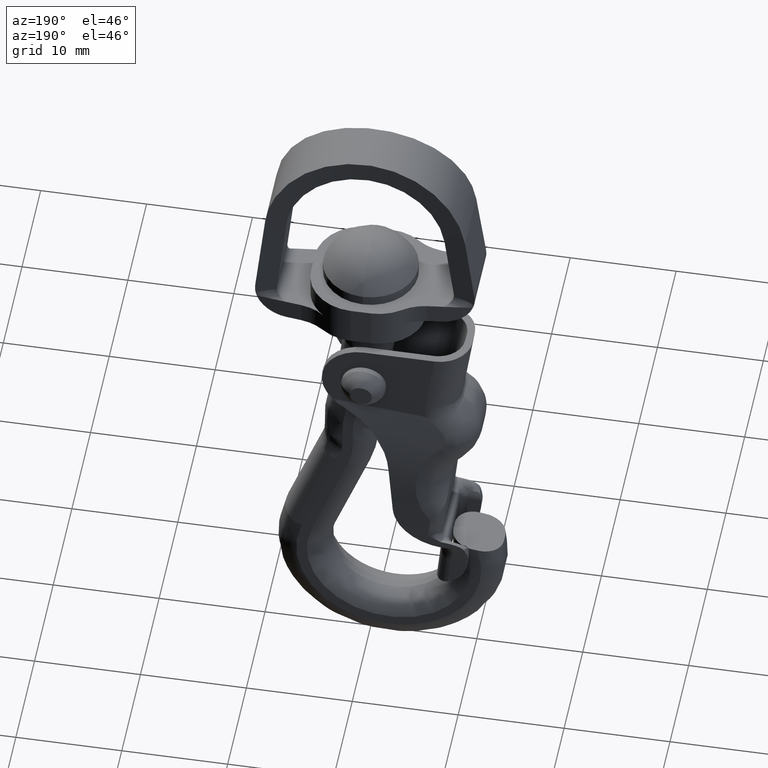
[diagram: clean part render]
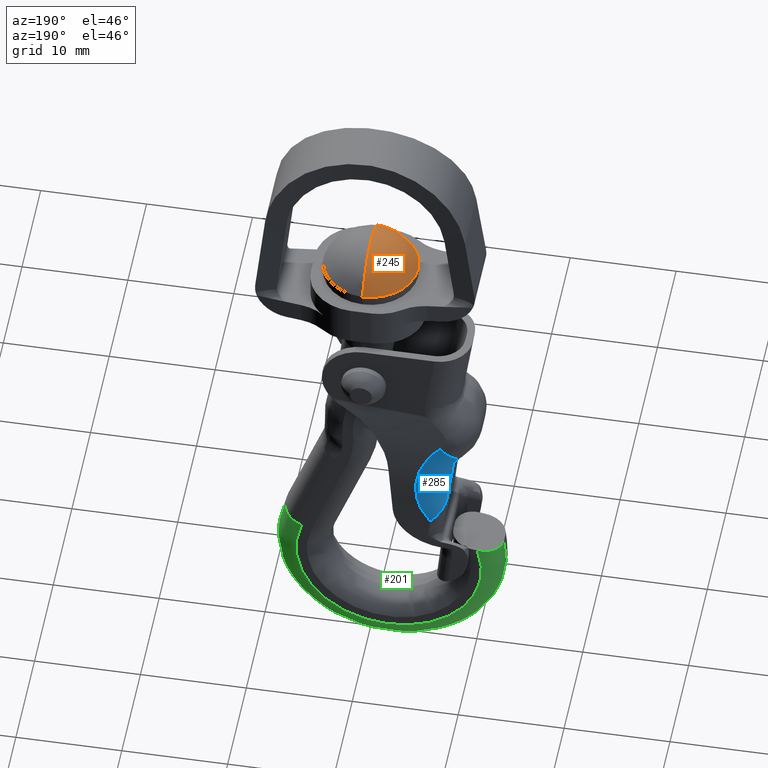
[diagram: same view with three faces highlighted in distinct colors, each labeled with its STEP entity id]
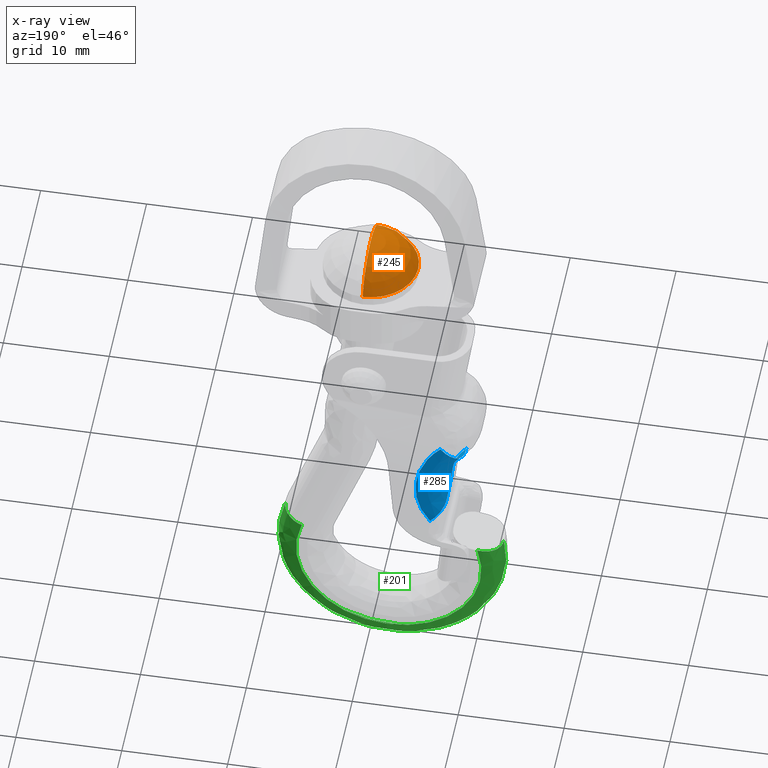
[diagram: x-ray of the same camera — body ghosted, the three highlighted faces saturated]
A machine part, auxiliary view with three faces highlighted in distinct colors.
The next image is the same camera in x-ray (body ghosted, the three faces saturated) — at least one of them is partly hidden behind the body in this view.
Their STEP definitions:

[orange] entity #245 — the highlighted spherical surface has radius 4.8333 mm.
#245=ADVANCED_FACE('',(#1315),#1314,.T.);
#1314=SPHERICAL_SURFACE('',#3267,4.83333333333E+00);
#1315=FACE_OUTER_BOUND('',#3268,.T.);
#3264=CARTESIAN_POINT('',(0.00000000000E+00,-4.54747350886E-13,-8.33333333333E-01));
#3265=DIRECTION('',(-0.00000000000E+00,-0.00000000000E+00,-1.00000000000E+00));
#3266=DIRECTION('',(-1.22460635382E-16,-1.00000000000E+00,0.00000000000E+00));
#3267=AXIS2_PLACEMENT_3D('',#3264,#3265,#3266);
#3268=EDGE_LOOP('',(#6055,#6056,#6057,#6058));
#6055=ORIENTED_EDGE('',*,*,#6882,.F.);
#6056=ORIENTED_EDGE('',*,*,#6881,.F.);
#6057=ORIENTED_EDGE('',*,*,#6885,.F.);
#6058=ORIENTED_EDGE('',*,*,#6886,.T.);
#6881=EDGE_CURVE('',#8854,#8861,#8862,.T.);
#6882=EDGE_CURVE('',#8861,#8868,#8869,.T.);
#6885=EDGE_CURVE('',#8887,#8854,#8888,.T.);
#6886=EDGE_CURVE('',#8887,#8868,#8894,.T.);
#8854=VERTEX_POINT('',#12177);
#8861=VERTEX_POINT('',#12181);
#8862=CIRCLE('',#12185,4.47213595500E+00);
#8868=VERTEX_POINT('',#12186);
#8869=CIRCLE('',#12190,4.47213595500E+00);
#8887=VERTEX_POINT('',#12198);
#8888=(BOUNDED_CURVE() B_SPLINE_CURVE(2,(#12199,#12200,#12201),.UNSPECIFIED.,.F.,.F.) B_SPLINE_CURVE_WITH_KNOTS((3,3),(0.00000000000E+00,1.00000000000E+00),.UNSPECIFIED.) CURVE() GEOMETRIC_REPRESENTATION_ITEM() RATIONAL_B_SPLINE_CURVE((1.00000000000E+00,8.30454798537E-01,1.00000000000E+00)) REPRESENTATION_ITEM('') );
#8894=(BOUNDED_CURVE() B_SPLINE_CURVE(2,(#12202,#12203,#12204),.UNSPECIFIED.,.F.,.F.) B_SPLINE_CURVE_WITH_KNOTS((3,3),(0.00000000000E+00,1.00000000000E+00),.UNSPECIFIED.) CURVE() GEOMETRIC_REPRESENTATION_ITEM() RATIONAL_B_SPLINE_CURVE((7.50000000000E-01,6.22841098903E-01,7.50000000000E-01)) REPRESENTATION_ITEM('') );
#12177=CARTESIAN_POINT('',(-3.66836692410E-11,-4.47213595500E+00,9.99999999998E-01));
#12181=CARTESIAN_POINT('',(-4.47213595500E+00,4.54747350886E-13,9.99999999998E-01));
#12182=CARTESIAN_POINT('',(0.00000000000E+00,4.54747350886E-13,9.99999999998E-01));
#12183=DIRECTION('',(-0.00000000000E+00,0.00000000000E+00,-1.00000000000E+00));
#12184=DIRECTION('',(-1.00000000000E+00,-1.22460635382E-16,0.00000000000E+00));
#12185=AXIS2_PLACEMENT_3D('',#12182,#12183,#12184);
#12186=CARTESIAN_POINT('',(4.64141588487E-04,4.47213593091E+00,9.99999999998E-01));
#12187=CARTESIAN_POINT('',(0.00000000000E+00,4.54747350886E-13,9.99999999998E-01));
#12188=DIRECTION('',(-0.00000000000E+00,0.00000000000E+00,-1.00000000000E+00));
#12189=DIRECTION('',(-1.00000000000E+00,-1.22460635382E-16,0.00000000000E+00));
#12190=AXIS2_PLACEMENT_3D('',#12187,#12188,#12189);
#12198=CARTESIAN_POINT('',(-3.62429977427E-32,-4.55043307196E-13,4.00000000000E+00));
#12199=CARTESIAN_POINT('',(-3.62429977427E-32,-4.55043307196E-13,4.00000000000E+00));
#12200=CARTESIAN_POINT('',(-3.97053942660E-16,-3.24229856738E+00,4.00000000000E+00));
#12201=CARTESIAN_POINT('',(-5.47660610565E-16,-4.47213595500E+00,9.99999999998E-01));
#12202=CARTESIAN_POINT('',(3.28692043842E-32,-4.54451394577E-13,4.00000000000E+00));
#12203=CARTESIAN_POINT('',(3.56502814789E-16,3.24229856738E+00,4.00000000000E+00));
#12204=CARTESIAN_POINT('',(8.88178419700E-16,4.47213595500E+00,9.99999999998E-01));

[blue] entity #285 — the highlighted face is a freeform B-spline surface patch.
#285=ADVANCED_FACE('',(#1716),#1715,.T.);
#1715=( BOUNDED_SURFACE() B_SPLINE_SURFACE( 3,2,((#4246,#4247,#4248),(#4249,#4250,#4251),(#4252,#4253,#4254),(#4255,#4256,#4257),(#4258,#4259,#4260),(#4261,#4262,#4263),(#4264,#4265,#4266),(#4267,#4268,#4269),(#4270,#4271,#4272),(#4273,#4274,#4275),(#4276,#4277,#4278),(#4279,#4280,#4281),(#4282,#4283,#4284),(#4285,#4286,#4287),(#4288,#4289,#4290),(#4291,#4292,#4293),(#4294,#4295,#4296),(#4297,#4298,#4299),(#4300,#4301,#4302),(#4303,#4304,#4305),(#4306,#4307,#4308),(#4309,#4310,#4311)), .UNSPECIFIED.,.F.,.F.,.F.) B_SPLINE_SURFACE_WITH_KNOTS((4,2,2,2,2,2,2,2,2,2,4),(3,3),(0.00000000000E+00,1.24255929217E-03,1.86383893826E-03,2.48511858435E-03,3.72767787652E-03,4.97023716869E-03,6.21279646086E-03,6.83407610695E-03,7.45535575304E-03,8.69791504521E-03,9.94047433738E-03),(0.00000000000E+00,1.00000000000E+00), .UNSPECIFIED. ) GEOMETRIC_REPRESENTATION_ITEM() RATIONAL_B_SPLINE_SURFACE(((1.00000000000E+00,6.78548252458E-01,1.00000000000E+00),(1.00000000000E+00,6.81875963517E-01,1.00000000000E+00),(1.00000000000E+00,6.85152758834E-01,1.00000000000E+00),(1.00000000000E+00,6.89794572548E-01,1.00000000000E+00),(1.00000000000E+00,6.91296485688E-01,1.00000000000E+00),(1.00000000000E+00,6.94178382040E-01,1.00000000000E+00),(1.00000000000E+00,6.95563713272E-01,1.00000000000E+00),(1.00000000000E+00,6.99414687661E-01,1.00000000000E+00),(1.00000000000E+00,7.01599034610E-01,1.00000000000E+00),(1.00000000000E+00,7.05081694357E-01,1.00000000000E+00),(1.00000000000E+00,7.06380871305E-01,1.00000000000E+00),(1.00000000000E+00,7.07928101501E-01,1.00000000000E+00),(1.00000000000E+00,7.08197997018E-01,1.00000000000E+00),(1.00000000000E+00,7.07883388422E-01,1.00000000000E+00),(1.00000000000E+00,7.07656076242E-01,1.00000000000E+00),(1.00000000000E+00,7.06982463217E-01,1.00000000000E+00),(1.00000000000E+00,7.06537150956E-01,1.00000000000E+00),(1.00000000000E+00,7.04914792734E-01,1.00000000000E+00),(1.00000000000E+00,7.03451010698E-01,1.00000000000E+00),(1.00000000000E+00,6.99959698406E-01,1.00000000000E+00),(1.00000000000E+00,6.97980068003E-01,1.00000000000E+00),(1.00000000000E+00,6.95931160871E-01,1.00000000000E+00))) REPRESENTATION_ITEM('') SURFACE() );
#1716=FACE_OUTER_BOUND('',#4312,.T.);
#4246=CARTESIAN_POINT('',(-7.94207448427E+00,4.14034814309E+00,-6.29198109592E+00));
#4247=CARTESIAN_POINT('',(-1.02971698381E+01,4.39649134031E+00,-8.51345765789E+00));
#4248=CARTESIAN_POINT('',(-1.01107769039E+01,1.16009369189E+00,-8.70846923124E+00));
#4249=CARTESIAN_POINT('',(-7.65280277639E+00,4.17709491830E+00,-6.61067821828E+00));
#4250=CARTESIAN_POINT('',(-1.01306226303E+01,4.40163553099E+00,-8.66268452741E+00));
#4251=CARTESIAN_POINT('',(-9.95501733928E+00,1.19498940489E+00,-8.87143097606E+00));
#4252=CARTESIAN_POINT('',(-7.39720144380E+00,4.21400436293E+00,-6.95334138415E+00));
#4253=CARTESIAN_POINT('',(-9.97641409467E+00,4.40808650219E+00,-8.82993665462E+00));
#4254=CARTESIAN_POINT('',(-9.81738372836E+00,1.23004054662E+00,-9.04665206904E+00));
#4255=CARTESIAN_POINT('',(-7.06219819109E+00,4.26763420366E+00,-7.50188838820E+00));
#4256=CARTESIAN_POINT('',(-9.76822075110E+00,4.41938007227E+00,-9.10791570262E+00));
#4257=CARTESIAN_POINT('',(-9.63699736143E+00,1.28096956040E+00,-9.32714847283E+00));
#4258=CARTESIAN_POINT('',(-6.95865246773E+00,4.28522544893E+00,-7.69054050859E+00));
#4259=CARTESIAN_POINT('',(-9.70285576912E+00,4.42339606106E+00,-9.20476000507E+00));
#4260=CARTESIAN_POINT('',(-9.58124197210E+00,1.29767490172E+00,-9.42361466624E+00));
#4261=CARTESIAN_POINT('',(-6.76813785171E+00,4.31952784087E+00,-8.07971823112E+00));
#4262=CARTESIAN_POINT('',(-9.58083957100E+00,4.43186413313E+00,-9.40740267222E+00));
#4263=CARTESIAN_POINT('',(-9.47865717857E+00,1.33024980715E+00,-9.62261849042E+00));
#4264=CARTESIAN_POINT('',(-6.68087802980E+00,4.33630741007E+00,-8.28121322922E+00));
#4265=CARTESIAN_POINT('',(-9.52392934362E+00,4.43633791836E+00,-9.51373243547E+00));
#4266=CARTESIAN_POINT('',(-9.43167112062E+00,1.34618434876E+00,-9.72565181654E+00));
#4267=CARTESIAN_POINT('',(-6.44949429754E+00,4.38392096338E+00,-8.89187676418E+00));
#4268=CARTESIAN_POINT('',(-9.37107606484E+00,4.44995969512E+00,-9.83912264603E+00));
#4269=CARTESIAN_POINT('',(-9.30707988061E+00,1.39140005867E+00,-1.00379111568E+01));
#4270=CARTESIAN_POINT('',(-6.33378702478E+00,4.41229863390E+00,-9.30981657464E+00));
#4271=CARTESIAN_POINT('',(-9.29092408369E+00,4.45941688038E+00,-1.00673415765E+01));
#4272=CARTESIAN_POINT('',(-9.24477596441E+00,1.41834861528E+00,-1.02516223118E+01));
#4273=CARTESIAN_POINT('',(-6.17844071688E+00,4.46097824626E+00,-1.01671605378E+01));
#4274=CARTESIAN_POINT('',(-9.17854881996E+00,4.47814258097E+00,-1.05414213306E+01));
#4275=CARTESIAN_POINT('',(-9.16112795208E+00,1.46457669687E+00,-1.06900202918E+01));
#4276=CARTESIAN_POINT('',(-6.13936469506E+00,4.48136126369E+00,-1.06107633220E+01));
#4277=CARTESIAN_POINT('',(-9.14625136811E+00,4.48750647484E+00,-1.07901877078E+01));
#4278=CARTESIAN_POINT('',(-9.14008701724E+00,1.48393321507E+00,-1.09168540632E+01));
#4279=CARTESIAN_POINT('',(-6.14259301144E+00,4.51172616154E+00,-1.14851416163E+01));
#4280=CARTESIAN_POINT('',(-9.13486395229E+00,4.50475306814E+00,-1.12818831829E+01));
#4281=CARTESIAN_POINT('',(-9.14182534185E+00,1.51276892104E+00,-1.13639624519E+01));
#4282=CARTESIAN_POINT('',(-6.18360957539E+00,4.52197364104E+00,-1.19190475206E+01));
#4283=CARTESIAN_POINT('',(-9.15476868080E+00,4.51273859108E+00,-1.15271546898E+01));
#4284=CARTESIAN_POINT('',(-9.16391118408E+00,1.52250033207E+00,-1.15858377786E+01));
#4285=CARTESIAN_POINT('',(-6.30494056414E+00,4.53027726739E+00,-1.25649120277E+01));
#4286=CARTESIAN_POINT('',(-9.22283905134E+00,4.52369891787E+00,-1.18899593963E+01));
#4287=CARTESIAN_POINT('',(-9.22924325449E+00,1.53038578357E+00,-1.19160969366E+01));
#4288=CARTESIAN_POINT('',(-6.35578724044E+00,4.53186224282E+00,-1.27804324798E+01));
#4289=CARTESIAN_POINT('',(-9.25216175460E+00,4.52720629865E+00,-1.20107880610E+01));
#4290=CARTESIAN_POINT('',(-9.25662223402E+00,1.53189093868E+00,-1.20263020992E+01));
#4291=CARTESIAN_POINT('',(-6.47595487082E+00,4.53274193844E+00,-1.32015683907E+01));
#4292=CARTESIAN_POINT('',(-9.32236982914E+00,4.53379660325E+00,-1.22457850963E+01));
#4293=CARTESIAN_POINT('',(-9.32132788148E+00,1.53272633260E+00,-1.22416475620E+01));
#4294=CARTESIAN_POINT('',(-6.54528049553E+00,4.53205709039E+00,-1.34077973555E+01));
#4295=CARTESIAN_POINT('',(-9.36328143058E+00,4.53689346284E+00,-1.23603691803E+01));
#4296=CARTESIAN_POINT('',(-9.35865706381E+00,1.53207597363E+00,-1.23471015752E+01));
#4297=CARTESIAN_POINT('',(-6.78035494199E+00,4.52702822504E+00,-1.40137655697E+01));
#4298=CARTESIAN_POINT('',(-9.50242924361E+00,4.54570130533E+00,-1.26951454991E+01));
#4299=CARTESIAN_POINT('',(-9.48523561202E+00,1.52730036486E+00,-1.26569599896E+01));
#4300=CARTESIAN_POINT('',(-6.97294733883E+00,4.51970901905E+00,-1.44009050440E+01));
#4301=CARTESIAN_POINT('',(-9.61702131398E+00,4.55092314985E+00,-1.29061387089E+01));
#4302=CARTESIAN_POINT('',(-9.58893921061E+00,1.52034975747E+00,-1.28549215670E+01));
#4303=CARTESIAN_POINT('',(-7.43262472796E+00,4.49915886318E+00,-1.51402443239E+01));
#4304=CARTESIAN_POINT('',(-9.88662475561E+00,4.56065952037E+00,-1.33012365311E+01));
#4305=CARTESIAN_POINT('',(-9.83645780403E+00,1.50083451848E+00,-1.32329785211E+01));
#4306=CARTESIAN_POINT('',(-7.69374165994E+00,4.48621270199E+00,-1.54823030639E+01));
#4307=CARTESIAN_POINT('',(-1.00384164090E+01,4.56505720960E+00,-1.34800322065E+01));
#4308=CARTESIAN_POINT('',(-9.97705965869E+00,1.48854029612E+00,-1.34078887617E+01));
#4309=CARTESIAN_POINT('',(-7.98206637108E+00,4.47216448844E+00,-1.57943716732E+01));
#4310=CARTESIAN_POINT('',(-1.02019249601E+01,4.56919093903E+00,-1.36390150939E+01));
#4311=CARTESIAN_POINT('',(-1.01323109968E+01,1.47519959424E+00,-1.35674628362E+01));
#4312=EDGE_LOOP('',(#6278,#6279,#6280,#6281,#6282));
#6278=ORIENTED_EDGE('',*,*,#7053,.F.);
#6279=ORIENTED_EDGE('',*,*,#7054,.T.);
#6280=ORIENTED_EDGE('',*,*,#7055,.F.);
#6281=ORIENTED_EDGE('',*,*,#7056,.F.);
#6282=ORIENTED_EDGE('',*,*,#7057,.T.);
#7053=EDGE_CURVE('',#10023,#10024,#10025,.T.);
#7054=EDGE_CURVE('',#10023,#10031,#10032,.T.);
#7055=EDGE_CURVE('',#10038,#10031,#10039,.T.);
#7056=EDGE_CURVE('',#10045,#10038,#10046,.T.);
#7057=EDGE_CURVE('',#10045,#10024,#10052,.T.);
#10023=VERTEX_POINT('',#13303);
#10024=VERTEX_POINT('',#13304);
#10025=(BOUNDED_CURVE() B_SPLINE_CURVE(3,(#13305,#13306,#13307,#13308,#13309,#13310,#13311,#13312,#13313,#13314,#13315,#13316,#13317,#13318,#13319,#13320,#13321,#13322,#13323,#13324,#13325,#13326),.UNSPECIFIED.,.F.,.F.) B_SPLINE_CURVE_WITH_KNOTS((4,2,2,2,2,2,2,2,2,2,4),(1.60140071030E-03,2.90848814800E-03,4.21557558569E-03,4.86911930454E-03,5.52266302339E-03,6.82975046108E-03,8.13683789878E-03,9.44392533647E-03,1.00974690553E-02,1.07510127742E-02,1.20581002119E-02),.UNSPECIFIED.) CURVE() GEOMETRIC_REPRESENTATION_ITEM() RATIONAL_B_SPLINE_CURVE((1.00000000000E+00,1.00000000000E+00,1.00000000000E+00,1.00000000000E+00,1.00000000000E+00,1.00000000000E+00,1.00000000000E+00,1.00000000000E+00,1.00000000000E+00,1.00000000000E+00,1.00000000000E+00,1.00000000000E+00,1.00000000000E+00,1.00000000000E+00,1.00000000000E+00,1.00000000000E+00,1.00000000000E+00,1.00000000000E+00,1.00000000000E+00,1.00000000000E+00,1.00000000000E+00,1.00000000000E+00)) REPRESENTATION_ITEM('') );
#10031=VERTEX_POINT('',#13327);
#10032=(BOUNDED_CURVE() B_SPLINE_CURVE(3,(#13328,#13329,#13330,#13331,#13332,#13333,#13334,#13335,#13336,#13337,#13338,#13339),.UNSPECIFIED.,.F.,.F.) B_SPLINE_CURVE_WITH_KNOTS((4,2,2,2,2,4),(-3.06650384943E-03,-2.68319086825E-03,-2.29987788707E-03,-1.53325192471E-03,-7.66625962357E-04,-4.09133713543E-18),.UNSPECIFIED.) CURVE() GEOMETRIC_REPRESENTATION_ITEM() RATIONAL_B_SPLINE_CURVE((1.00000000000E+00,1.00000000000E+00,1.00000000000E+00,1.00000000000E+00,1.00000000000E+00,1.00000000000E+00,1.00000000000E+00,1.00000000000E+00,1.00000000000E+00,1.00000000000E+00,1.00000000000E+00,1.00000000000E+00)) REPRESENTATION_ITEM('') );
#10038=VERTEX_POINT('',#13340);
#10039=(BOUNDED_CURVE() B_SPLINE_CURVE(3,(#13341,#13342,#13343,#13344,#13345,#13346,#13347,#13348),.UNSPECIFIED.,.F.,.F.) B_SPLINE_CURVE_WITH_KNOTS((4,2,2,4),(-6.54284632986E-03,-5.83760321801E-03,-5.13236010616E-03,-3.72187388246E-03),.UNSPECIFIED.) CURVE() GEOMETRIC_REPRESENTATION_ITEM() RATIONAL_B_SPLINE_CURVE((1.00000000000E+00,1.00000000000E+00,1.00000000000E+00,1.00000000000E+00,1.00000000000E+00,1.00000000000E+00,1.00000000000E+00,1.00000000000E+00)) REPRESENTATION_ITEM('') );
#10045=VERTEX_POINT('',#13349);
#10046=(BOUNDED_CURVE() B_SPLINE_CURVE(3,(#13350,#13351,#13352,#13353,#13354,#13355,#13356,#13357,#13358,#13359),.UNSPECIFIED.,.F.,.F.) B_SPLINE_CURVE_WITH_KNOTS((4,2,2,2,4),(2.16840434497E-19,6.69256974509E-04,1.33851394902E-03,2.00777092353E-03,2.67702789803E-03),.UNSPECIFIED.) CURVE() GEOMETRIC_REPRESENTATION_ITEM() RATIONAL_B_SPLINE_CURVE((1.00000000000E+00,1.00000000000E+00,1.00000000000E+00,1.00000000000E+00,1.00000000000E+00,1.00000000000E+00,1.00000000000E+00,1.00000000000E+00,1.00000000000E+00,1.00000000000E+00)) REPRESENTATION_ITEM('') );
#10052=CIRCLE('',#13363,3.00000000000E+00);
#13303=CARTESIAN_POINT('',(-7.94092972689E+00,4.47417018611E+00,-1.57494393137E+01));
#13304=CARTESIAN_POINT('',(-7.94207448427E+00,4.14034814309E+00,-6.29198109592E+00));
#13305=CARTESIAN_POINT('',(-7.94092972689E+00,4.47417018611E+00,-1.57494393137E+01));
#13306=CARTESIAN_POINT('',(-7.65223580818E+00,4.48825470057E+00,-1.54312163859E+01));
#13307=CARTESIAN_POINT('',(-7.39299310541E+00,4.50105603266E+00,-1.50839860745E+01));
#13308=CARTESIAN_POINT('',(-6.94130769892E+00,4.52097697122E+00,-1.43412601611E+01));
#13309=CARTESIAN_POINT('',(-6.75332607538E+00,4.52789181815E+00,-1.39538789476E+01));
#13310=CARTESIAN_POINT('',(-6.52520664326E+00,4.53231032338E+00,-1.33500053781E+01));
#13311=CARTESIAN_POINT('',(-6.45820767734E+00,4.53279142421E+00,-1.31448863141E+01));
#13312=CARTESIAN_POINT('',(-6.34255782470E+00,4.53153148672E+00,-1.27268773717E+01));
#13313=CARTESIAN_POINT('',(-6.29401792118E+00,4.52977449812E+00,-1.25138906503E+01));
#13314=CARTESIAN_POINT('',(-6.17868957949E+00,4.52105310067E+00,-1.18758684743E+01));
#13315=CARTESIAN_POINT('',(-6.14064044251E+00,4.51064258070E+00,-1.14476074390E+01));
#13316=CARTESIAN_POINT('',(-6.14122229330E+00,4.48024207718E+00,-1.05853470494E+01));
#13317=CARTESIAN_POINT('',(-6.18097724537E+00,4.46002892986E+00,-1.01488603678E+01));
#13318=CARTESIAN_POINT('',(-6.33590136714E+00,4.41179527557E+00,-9.30258070934E+00));
#13319=CARTESIAN_POINT('',(-6.45062304533E+00,4.38369079161E+00,-8.88894911414E+00));
#13320=CARTESIAN_POINT('',(-6.68015569947E+00,4.33645500091E+00,-8.28309395630E+00));
#13321=CARTESIAN_POINT('',(-6.76670895115E+00,4.31979970963E+00,-8.08295412260E+00));
#13322=CARTESIAN_POINT('',(-6.95615568277E+00,4.28566070386E+00,-7.69533039024E+00));
#13323=CARTESIAN_POINT('',(-7.05930901669E+00,4.26811541195E+00,-7.50697094876E+00));
#13324=CARTESIAN_POINT('',(-7.39387994675E+00,4.21449946999E+00,-6.95809084237E+00));
#13325=CARTESIAN_POINT('',(-7.65014801019E+00,4.17743215836E+00,-6.61360303105E+00));
#13326=CARTESIAN_POINT('',(-7.94207448427E+00,4.14034814309E+00,-6.29198109592E+00));
#13327=CARTESIAN_POINT('',(-9.14092972689E+00,3.33218031428E+00,-1.32868647565E+01));
#13328=CARTESIAN_POINT('',(-7.94092972689E+00,4.47417018611E+00,-1.57494393137E+01));
#13329=CARTESIAN_POINT('',(-8.01962343584E+00,4.47862111560E+00,-1.56488758320E+01));
#13330=CARTESIAN_POINT('',(-8.10000017308E+00,4.47496628877E+00,-1.55456917958E+01));
#13331=CARTESIAN_POINT('',(-8.25540044706E+00,4.45163862835E+00,-1.53419439921E+01));
#13332=CARTESIAN_POINT('',(-8.33157765090E+00,4.43203536864E+00,-1.52399308479E+01));
#13333=CARTESIAN_POINT('',(-8.55290863585E+00,4.34957349974E+00,-1.49314653442E+01));
#13334=CARTESIAN_POINT('',(-8.68644443593E+00,4.26448847045E+00,-1.47287695996E+01));
#13335=CARTESIAN_POINT('',(-8.90900134436E+00,4.04713028947E+00,-1.43232534713E+01));
#13336=CARTESIAN_POINT('',(-8.99879993581E+00,3.91199667451E+00,-1.41170536854E+01));
#13337=CARTESIAN_POINT('',(-9.11417879945E+00,3.62643202924E+00,-1.37079896082E+01));
#13338=CARTESIAN_POINT('',(-9.14092972689E+00,3.47525852653E+00,-1.35029468672E+01));
#13339=CARTESIAN_POINT('',(-9.14092972689E+00,3.33218031428E+00,-1.32868647565E+01));
#13340=CARTESIAN_POINT('',(-9.14092972689E+00,1.49746780508E+00,-1.11268006172E+01));
#13341=CARTESIAN_POINT('',(-9.14092972689E+00,1.49746780508E+00,-1.11268006172E+01));
#13342=CARTESIAN_POINT('',(-9.14092972689E+00,1.66302056771E+00,-1.12936999188E+01));
#13343=CARTESIAN_POINT('',(-9.14092972689E+00,1.82939800730E+00,-1.14641362489E+01));
#13344=CARTESIAN_POINT('',(-9.14092972689E+00,2.15410108799E+00,-1.18083435555E+01));
#13345=CARTESIAN_POINT('',(-9.14092972689E+00,2.31353539912E+00,-1.19831760126E+01));
#13346=CARTESIAN_POINT('',(-9.14092972689E+00,2.77893528596E+00,-1.25197430162E+01));
#13347=CARTESIAN_POINT('',(-9.14092972689E+00,3.07066394574E+00,-1.28919128766E+01));
#13348=CARTESIAN_POINT('',(-9.14092972689E+00,3.33218031428E+00,-1.32868647565E+01));
#13349=CARTESIAN_POINT('',(-1.01107769039E+01,1.16009369189E+00,-8.70846923124E+00));
#13350=CARTESIAN_POINT('',(-1.01107769039E+01,1.16009369189E+00,-8.70846923124E+00));
#13351=CARTESIAN_POINT('',(-9.95630146948E+00,1.19470171321E+00,-8.87008746886E+00));
#13352=CARTESIAN_POINT('',(-9.81967590091E+00,1.22945697492E+00,-9.04373094666E+00));
#13353=CARTESIAN_POINT('',(-9.58048226110E+00,1.29686360286E+00,-9.41440063119E+00));
#13354=CARTESIAN_POINT('',(-9.47715923537E+00,1.32981411336E+00,-9.61345978613E+00));
#13355=CARTESIAN_POINT('',(-9.31079798424E+00,1.38991898703E+00,-1.00268611777E+01));
#13356=CARTESIAN_POINT('',(-9.24804138080E+00,1.41686181085E+00,-1.02392723651E+01));
#13357=CARTESIAN_POINT('',(-9.16302848826E+00,1.46322746094E+00,-1.06755792728E+01));
#13358=CARTESIAN_POINT('',(-9.14092972689E+00,1.48271518961E+00,-1.09009661955E+01));
#13359=CARTESIAN_POINT('',(-9.14092972689E+00,1.49746780508E+00,-1.11268006172E+01));
#13360=CARTESIAN_POINT('',(-7.94207448427E+00,1.16009369189E+00,-6.63561375752E+00));
#13361=DIRECTION('',(6.88564004802E-01,8.30646707297E-02,-7.20402576181E-01));
#13362=DIRECTION('',(7.22900806558E-01,-0.00000000000E+00,6.90951824571E-01));
#13363=AXIS2_PLACEMENT_3D('',#13360,#13361,#13362);

[green] entity #201 — the highlighted face is a freeform B-spline surface patch.
#201=ADVANCED_FACE('',(#873),#872,.T.);
#872=( BOUNDED_SURFACE() B_SPLINE_SURFACE( 2,2,((#2784,#2785,#2786,#2787,#2788,#2789,#2790,#2791,#2792),(#2793,#2794,#2795,#2796,#2797,#2798,#2799,#2800,#2801),(#2802,#2803,#2804,#2805,#2806,#2807,#2808,#2809,#2810),(#2811,#2812,#2813,#2814,#2815,#2816,#2817,#2818,#2819),(#2820,#2821,#2822,#2823,#2824,#2825,#2826,#2827,#2828)), .UNSPECIFIED.,.F.,.F.,.F.) B_SPLINE_SURFACE_WITH_KNOTS((3,2,3),(3,2,2,2,3),(-2.89190021477E-04,1.04710115452E+00,1.57079632758E+00),(1.23993638843E+00,1.57079632679E+00,3.14159265359E+00,4.71238898038E+00,5.06165581095E+00), .UNSPECIFIED. ) GEOMETRIC_REPRESENTATION_ITEM() RATIONAL_B_SPLINE_SURFACE(((9.02603545338E-01,9.38307321790E-01,1.00000000000E+00,7.07106781187E-01,1.00000000000E+00,7.07106781187E-01,1.00000000000E+00,9.34875142954E-01,8.98711332002E-01),(7.81634092187E-01,8.12552748599E-01,8.65977201424E-01,6.12338351480E-01,8.65977201424E-01,6.12338351480E-01,8.65977201424E-01,8.09580559976E-01,7.78263524175E-01),(9.02603545338E-01,9.38307321790E-01,1.00000000000E+00,7.07106781187E-01,1.00000000000E+00,7.07106781187E-01,1.00000000000E+00,9.34875142954E-01,8.98711332002E-01),(8.42118818671E-01,8.75430035100E-01,9.32988600611E-01,6.59722566262E-01,9.32988600611E-01,6.59722566262E-01,9.32988600611E-01,8.72227851371E-01,8.38487427998E-01),(8.42118818762E-01,8.75430035194E-01,9.32988600712E-01,6.59722566333E-01,9.32988600712E-01,6.59722566333E-01,9.32988600712E-01,8.72227851465E-01,8.38487428089E-01))) REPRESENTATION_ITEM('') SURFACE() );
#873=FACE_OUTER_BOUND('',#2829,.T.);
#2784=CARTESIAN_POINT('',(-1.23851888975E+01,3.99421619966E-01,-3.26000362338E+01));
#2785=CARTESIAN_POINT('',(-1.28851886192E+01,3.99421619966E-01,-3.42315053846E+01));
#2786=CARTESIAN_POINT('',(-1.28554083935E+01,3.99421619966E-01,-3.59376133677E+01));
#2787=CARTESIAN_POINT('',(-1.26677950258E+01,3.99421619966E-01,-4.66859760071E+01));
#2788=CARTESIAN_POINT('',(-1.91943238648E+00,3.99421619966E-01,-4.64983626393E+01));
#2789=CARTESIAN_POINT('',(8.82893025283E+00,3.99421619966E-01,-4.63107492716E+01));
#2790=CARTESIAN_POINT('',(8.64131688509E+00,3.99421619966E-01,-3.55623866323E+01));
#2791=CARTESIAN_POINT('',(8.60976446794E+00,3.99421619966E-01,-3.37547498646E+01));
#2792=CARTESIAN_POINT('',(7.98866257897E+00,3.99421619966E-01,-3.20568751100E+01));
#2793=CARTESIAN_POINT('',(-1.23855082391E+01,1.55437918215E+00,-3.25999383645E+01));
#2794=CARTESIAN_POINT('',(-1.28855234958E+01,1.55437918215E+00,-3.42314582050E+01));
#2795=CARTESIAN_POINT('',(-1.28557423449E+01,1.55437918215E+00,-3.59376191969E+01));
#2796=CARTESIAN_POINT('',(-1.26681231480E+01,1.55437918215E+00,-4.66863157875E+01));
#2797=CARTESIAN_POINT('',(-1.91942655734E+00,1.55437918215E+00,-4.64986965907E+01));
#2798=CARTESIAN_POINT('',(8.82927003331E+00,1.55437918215E+00,-4.63110773938E+01));
#2799=CARTESIAN_POINT('',(8.64165083643E+00,1.55437918215E+00,-3.55623808031E+01));
#2800=CARTESIAN_POINT('',(8.61009743895E+00,1.55437918215E+00,-3.37546878722E+01));
#2801=CARTESIAN_POINT('',(7.98897625236E+00,1.55437918215E+00,-3.20567603647E+01));
#2802=CARTESIAN_POINT('',(-1.14292422619E+01,2.13195440285E+00,-3.28930071744E+01));
#2803=CARTESIAN_POINT('',(-1.18827381507E+01,2.13195440285E+00,-3.43727371031E+01));
#2804=CARTESIAN_POINT('',(-1.18557277159E+01,2.13195440285E+00,-3.59201638766E+01));
#2805=CARTESIAN_POINT('',(-1.16855638393E+01,2.13195440285E+00,-4.56688458382E+01));
#2806=CARTESIAN_POINT('',(-1.93688187762E+00,2.13195440285E+00,-4.54986819616E+01));
#2807=CARTESIAN_POINT('',(7.81180008402E+00,2.13195440285E+00,-4.53285180850E+01));
#2808=CARTESIAN_POINT('',(7.64163620741E+00,2.13195440285E+00,-3.55798361234E+01));
#2809=CARTESIAN_POINT('',(7.61301840857E+00,2.13195440285E+00,-3.39403235259E+01));
#2810=CARTESIAN_POINT('',(7.04968378872E+00,2.13195440285E+00,-3.24003642271E+01));
#2811=CARTESIAN_POINT('',(-1.09854509147E+01,2.40000000043E+00,-3.30290168255E+01));
#2812=CARTESIAN_POINT('',(-1.14173577336E+01,2.40000000043E+00,-3.44383029122E+01));
#2813=CARTESIAN_POINT('',(-1.13916331543E+01,2.40000000043E+00,-3.59120630759E+01));
#2814=CARTESIAN_POINT('',(-1.12295700784E+01,2.40000000043E+00,-4.51966504760E+01));
#2815=CARTESIAN_POINT('',(-1.94498267832E+00,2.40000000043E+00,-4.50345874001E+01));
#2816=CARTESIAN_POINT('',(7.33960472173E+00,2.40000000043E+00,-4.48725243242E+01));
#2817=CARTESIAN_POINT('',(7.17754164583E+00,2.40000000043E+00,-3.55879369241E+01));
#2818=CARTESIAN_POINT('',(7.15028622242E+00,2.40000000043E+00,-3.40264747628E+01));
#2819=CARTESIAN_POINT('',(6.61376964161E+00,2.40000000043E+00,-3.25598265781E+01));
#2820=CARTESIAN_POINT('',(-1.04729762832E+01,2.40000000000E+00,-3.31860759848E+01));
#2821=CARTESIAN_POINT('',(-1.08799528039E+01,2.40000000000E+00,-3.45140160014E+01));
#2822=CARTESIAN_POINT('',(-1.08557130852E+01,2.40000000000E+00,-3.59027085563E+01));
#2823=CARTESIAN_POINT('',(-1.07030045289E+01,2.40000000000E+00,-4.46513758873E+01));
#2824=CARTESIAN_POINT('',(-1.95433719793E+00,2.40000000000E+00,-4.44986673310E+01));
#2825=CARTESIAN_POINT('',(6.79433013308E+00,2.40000000000E+00,-4.43459587747E+01));
#2826=CARTESIAN_POINT('',(6.64162157678E+00,2.40000000000E+00,-3.55972914437E+01));
#2827=CARTESIAN_POINT('',(6.61593937659E+00,2.40000000000E+00,-3.41259591798E+01));
#2828=CARTESIAN_POINT('',(6.11039132358E+00,2.40000000000E+00,-3.27439680900E+01));
#2829=EDGE_LOOP('',(#5838,#5839,#5840,#5841));
#5838=ORIENTED_EDGE('',*,*,#6791,.F.);
#5839=ORIENTED_EDGE('',*,*,#6796,.F.);
#5840=ORIENTED_EDGE('',*,*,#6797,.T.);
#5841=ORIENTED_EDGE('',*,*,#6798,.F.);
#6791=EDGE_CURVE('',#8270,#8277,#8278,.T.);
#6796=EDGE_CURVE('',#8311,#8270,#8312,.T.);
#6797=EDGE_CURVE('',#8311,#8318,#8319,.T.);
#6798=EDGE_CURVE('',#8277,#8318,#8325,.T.);
#8270=VERTEX_POINT('',#11750);
#8277=VERTEX_POINT('',#11754);
#8278=(BOUNDED_CURVE() B_SPLINE_CURVE(3,(#11755,#11756,#11757,#11758,#11759,#11760,#11761,#11762,#11763,#11764,#11765,#11766,#11767,#11768),.UNSPECIFIED.,.F.,.F.) B_SPLINE_CURVE_WITH_KNOTS((4,2,2,2,2,2,4),(5.27595548005E-18,8.19311644632E-04,1.63862328926E-03,2.04827911158E-03,2.45793493390E-03,2.86759075621E-03,3.27724657853E-03),.UNSPECIFIED.) CURVE() GEOMETRIC_REPRESENTATION_ITEM() RATIONAL_B_SPLINE_CURVE((1.00000000000E+00,1.00000000000E+00,1.00000000000E+00,1.00000000000E+00,1.00000000000E+00,1.00000000000E+00,1.00000000000E+00,1.00000000000E+00,1.00000000000E+00,1.00000000000E+00,1.00000000000E+00,1.00000000000E+00,1.00000000000E+00,1.00000000000E+00)) REPRESENTATION_ITEM('') );
#8311=VERTEX_POINT('',#11797);
#8312=CIRCLE('',#11801,8.75000000000E+00);
#8318=VERTEX_POINT('',#11802);
#8319=CIRCLE('',#11806,2.00000000000E+00);
#8325=CIRCLE('',#11810,1.07500000000E+01);
#11750=CARTESIAN_POINT('',(-1.04729762848E+01,2.40000000000E+00,-3.31860759843E+01));
#11754=CARTESIAN_POINT('',(-1.26295216986E+01,4.00000000000E-01,-3.35500000000E+01));
#11755=CARTESIAN_POINT('',(-1.04729762848E+01,2.40000000000E+00,-3.31860759843E+01));
#11756=CARTESIAN_POINT('',(-1.07459439621E+01,2.40000000000E+00,-3.32321401630E+01));
#11757=CARTESIAN_POINT('',(-1.10124662648E+01,2.35526557391E+00,-3.32771166638E+01));
#11758=CARTESIAN_POINT('',(-1.15262681772E+01,2.16957638994E+00,-3.33638223989E+01));
#11759=CARTESIAN_POINT('',(-1.17608535881E+01,2.03299951152E+00,-3.34034094459E+01));
#11760=CARTESIAN_POINT('',(-1.20686243543E+01,1.76000293748E+00,-3.34553467585E+01));
#11761=CARTESIAN_POINT('',(-1.21606801811E+01,1.66021956208E+00,-3.34708814771E+01));
#11762=CARTESIAN_POINT('',(-1.23235958989E+01,1.44297780771E+00,-3.34983740315E+01));
#11763=CARTESIAN_POINT('',(-1.23951651006E+01,1.32384663573E+00,-3.35104515659E+01));
#11764=CARTESIAN_POINT('',(-1.25104153300E+01,1.07485074875E+00,-3.35299004149E+01));
#11765=CARTESIAN_POINT('',(-1.25542785505E+01,9.45683552870E-01,-3.35373024753E+01));
#11766=CARTESIAN_POINT('',(-1.26139897186E+01,6.77843901271E-01,-3.35473789281E+01));
#11767=CARTESIAN_POINT('',(-1.26295216986E+01,5.38853596053E-01,-3.35500000000E+01));
#11768=CARTESIAN_POINT('',(-1.26295216986E+01,4.00000000000E-01,-3.35500000000E+01));
#11797=CARTESIAN_POINT('',(6.11039132464E+00,2.40000000000E+00,-3.27439680882E+01));
#11798=CARTESIAN_POINT('',(-2.10704575422E+00,2.40000000000E+00,-3.57500000000E+01));
#11799=DIRECTION('',(-0.00000000000E+00,1.00000000000E+00,0.00000000000E+00));
#11800=DIRECTION('',(9.39135666156E-01,0.00000000000E+00,3.43546504209E-01));
#11801=AXIS2_PLACEMENT_3D('',#11798,#11799,#11800);
#11802=CARTESIAN_POINT('',(7.98866265695E+00,4.00000000000E-01,-3.20568750798E+01));
#11803=CARTESIAN_POINT('',(6.11039132464E+00,4.00000000000E-01,-3.27439680882E+01));
#11804=DIRECTION('',(3.43546504209E-01,1.23259516441E-32,-9.39135666156E-01));
#11805=DIRECTION('',(-1.72510725581E-16,1.00000000000E+00,-6.31063847831E-17));
#11806=AXIS2_PLACEMENT_3D('',#11803,#11804,#11805);
#11807=CARTESIAN_POINT('',(-2.10704575422E+00,4.00000000000E-01,-3.57500000000E+01));
#11808=DIRECTION('',(0.00000000000E+00,-1.00000000000E+00,0.00000000000E+00));
#11809=DIRECTION('',(9.39135666156E-01,0.00000000000E+00,3.43546504209E-01));
#11810=AXIS2_PLACEMENT_3D('',#11807,#11808,#11809);